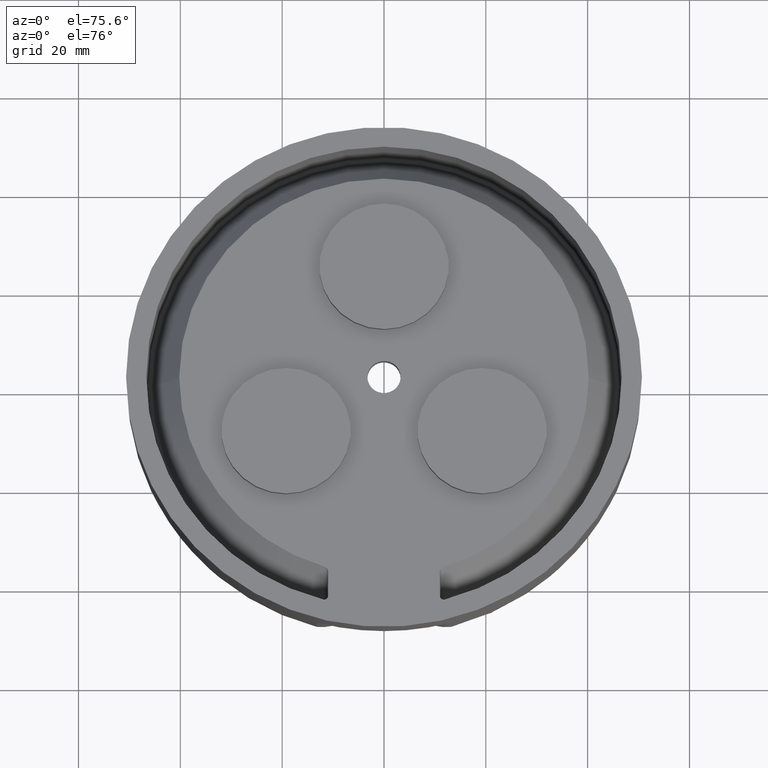
[diagram: clean part render]
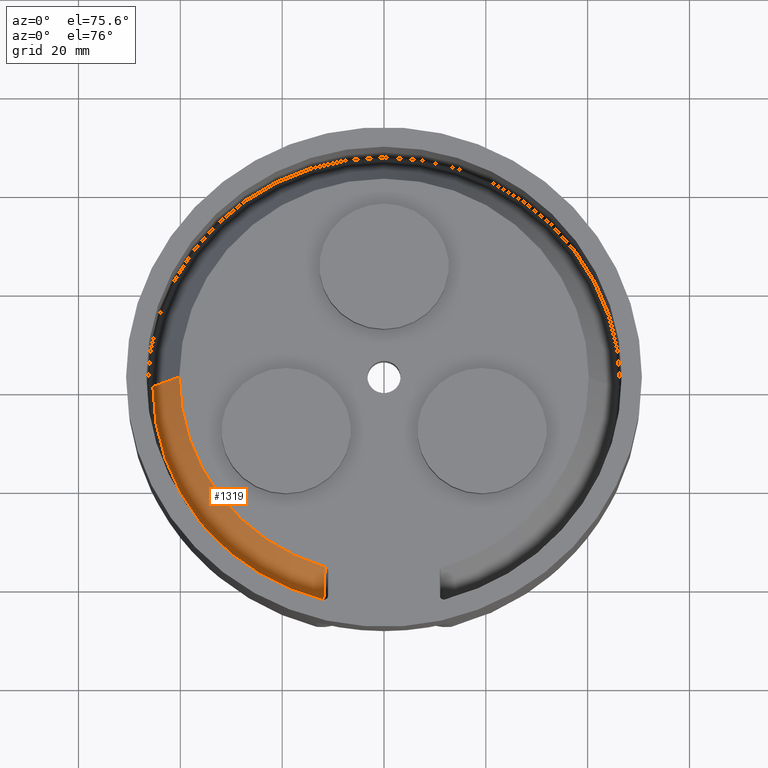
[diagram: same view with one face highlighted and labeled with its STEP entity id]
A machine part, auxiliary view. The second image highlights one B-rep face of the part: STEP entity #1319.
In plain terms, the highlighted conical surface has half-angle 34 deg.
Its self-contained STEP definition (entity closure, byte-faithful):
#20 = AXIS2_PLACEMENT_3D ( 'NONE', #2573, #2586, #2587 ) ;
#24 = AXIS2_PLACEMENT_3D ( 'NONE', #2616, #2617, #2618 ) ;
#455 = ORIENTED_EDGE ( 'NONE', *, *, #5444, .F. ) ;
#651 = VERTEX_POINT ( 'NONE', #1033 ) ;
#654 = VERTEX_POINT ( 'NONE', #1036 ) ;
#655 = VERTEX_POINT ( 'NONE', #1037 ) ;
#656 = VERTEX_POINT ( 'NONE', #1038 ) ;
#657 = VERTEX_POINT ( 'NONE', #1039 ) ;
#806 = FACE_OUTER_BOUND ( 'NONE', #5847, .T. ) ;
#808 = CONICAL_SURFACE ( 'NONE', #3451, 1.787227104442043400, 0.5934119456780733200 ) ;
#1033 = CARTESIAN_POINT ( 'NONE',  ( -1.583079598697106200, -2.253821596352594800E-015, -0.1562500000000161300 ) ) ;
#1036 = CARTESIAN_POINT ( 'NONE',  ( -1.787227104442034700, 6.454987288493129000E-015, -0.4589111238366799200 ) ) ;
#1037 = CARTESIAN_POINT ( 'NONE',  ( -0.4553458577434172400, -1.516179793311760900, -0.1562500000000073800 ) ) ;
#1038 = CARTESIAN_POINT ( 'NONE',  ( -0.4710056767952701700, -1.724045931893606300, -0.4589111238366799200 ) ) ;
#1039 = CARTESIAN_POINT ( 'NONE',  ( -0.4665456169950829600, -1.724172253810394700, -0.4573569767990897600 ) ) ;
#1319 = ADVANCED_FACE ( 'NONE', ( #806 ), #808, .T. ) ;
#2102 = B_SPLINE_CURVE_WITH_KNOTS ( 'NONE', 3,
 ( #2601, #2610, #2611, #2612, #2613, #2614, #2615 ),
 .UNSPECIFIED., .F., .F.,
 ( 4, 3, 4 ),
 ( 0.0000000000000000000, 0.006138148079901187600, 0.009299721386586948600 ),
 .UNSPECIFIED. ) ;
#2103 = B_SPLINE_CURVE_WITH_KNOTS ( 'NONE', 3,
 ( #2585, #2589, #2590, #2591, #2592, #2593, #2594, #2595, #2596, #2597 ),
 .UNSPECIFIED., .F., .F.,
 ( 4, 3, 3, 4 ),
 ( 0.0000000000000000000, 4.716724008613152900E-005, 9.752039142329750300E-005, 0.0001225809644263234500 ),
 .UNSPECIFIED. ) ;
#2573 = CARTESIAN_POINT ( 'NONE',  ( 8.741913579725642300E-015, -2.185478394931410600E-015, -0.4589111238366799200 ) ) ;
#2585 = CARTESIAN_POINT ( 'NONE',  ( -0.4665456169950829600, -1.724172253810394700, -0.4573569767990897600 ) ) ;
#2586 = DIRECTION ( 'NONE',  ( 0.0000000000000000000, -1.665334536937734100E-016, -1.000000000000000000 ) ) ;
#2587 = DIRECTION ( 'NONE',  ( -1.000000000000000000, -5.551115123125795000E-017, -3.821349825764200100E-017 ) ) ;
#2589 = CARTESIAN_POINT ( 'NONE',  ( -0.4670486387618891200, -1.724277280977231500, -0.4577020714232670200 ) ) ;
#2590 = CARTESIAN_POINT ( 'NONE',  ( -0.4675886800001922700, -1.724348095125988200, -0.4580128015297122400 ) ) ;
#2591 = CARTESIAN_POINT ( 'NONE',  ( -0.4681542372524401000, -1.724369740030105900, -0.4582634574609132900 ) ) ;
#2592 = CARTESIAN_POINT ( 'NONE',  ( -0.4687550751852978500, -1.724392735190003900, -0.4585297498494608200 ) ) ;
#2593 = CARTESIAN_POINT ( 'NONE',  ( -0.4693981018698242200, -1.724359028893184900, -0.4587317309004692000 ) ) ;
#2594 = CARTESIAN_POINT ( 'NONE',  ( -0.4700394627418933400, -1.724255275035275300, -0.4588334068754363900 ) ) ;
#2595 = CARTESIAN_POINT ( 'NONE',  ( -0.4703618572024695900, -1.724203120826139200, -0.4588845165899989600 ) ) ;
#2596 = CARTESIAN_POINT ( 'NONE',  ( -0.4706868018030658200, -1.724133047862350200, -0.4589111238366798100 ) ) ;
#2597 = CARTESIAN_POINT ( 'NONE',  ( -0.4710056767952701700, -1.724045931893606300, -0.4589111238366799200 ) ) ;
#2601 = CARTESIAN_POINT ( 'NONE',  ( -0.4553458577434172400, -1.516179793311760900, -0.1562500000000073800 ) ) ;
#2604 = CARTESIAN_POINT ( 'NONE',  ( -1.787227104442034500, -2.284689429010696000E-015, -0.4589111238366799800 ) ) ;
#2605 = DIRECTION ( 'NONE',  ( -0.5591929034707476800, -1.691039320315040500E-016, -0.8290375725550409600 ) ) ;
#2610 = CARTESIAN_POINT ( 'NONE',  ( -0.4578263251143317400, -1.562041266103403100, -0.2224268724474003600 ) ) ;
#2611 = CARTESIAN_POINT ( 'NONE',  ( -0.4602947200214185200, -1.607828130267507500, -0.2886559398310543100 ) ) ;
#2612 = CARTESIAN_POINT ( 'NONE',  ( -0.4627535608625173400, -1.653556771027452800, -0.3549254755762308900 ) ) ;
#2613 = CARTESIAN_POINT ( 'NONE',  ( -0.4640200354374364200, -1.677110211290873800, -0.3890589097986156300 ) ) ;
#2614 = CARTESIAN_POINT ( 'NONE',  ( -0.4652839628387443500, -1.700648121834696700, -0.4232031588355672500 ) ) ;
#2615 = CARTESIAN_POINT ( 'NONE',  ( -0.4665456169950829600, -1.724172253810394700, -0.4573569767990897600 ) ) ;
#2616 = CARTESIAN_POINT ( 'NONE',  ( 0.0000000000000000000, 6.556435184794231700E-015, -0.1562500000000161300 ) ) ;
#2617 = DIRECTION ( 'NONE',  ( -0.0000000000000000000, -1.665334536937734100E-016, -1.000000000000000000 ) ) ;
#2618 = DIRECTION ( 'NONE',  ( 1.000000000000000000, -8.326672684688679000E-016, 6.471203333472478400E-017 ) ) ;
#3361 = ORIENTED_EDGE ( 'NONE', *, *, #5358, .T. ) ;
#3394 = ORIENTED_EDGE ( 'NONE', *, *, #5445, .T. ) ;
#3398 = ORIENTED_EDGE ( 'NONE', *, *, #5355, .F. ) ;
#3399 = ORIENTED_EDGE ( 'NONE', *, *, #5354, .F. ) ;
#3451 = AXIS2_PLACEMENT_3D ( 'NONE', #4303, #4298, #4301 ) ;
#3550 = VECTOR ( 'NONE', #2605, 39.37007874015748900 ) ;
#3560 = LINE ( 'NONE', #2604, #3550 ) ;
#3561 = CIRCLE ( 'NONE', #20, 1.787227104442043400 ) ;
#3565 = CIRCLE ( 'NONE', #24, 1.583079598697106200 ) ;
#4298 = DIRECTION ( 'NONE',  ( 0.0000000000000000000, -1.665334536937734100E-016, -1.000000000000000000 ) ) ;
#4301 = DIRECTION ( 'NONE',  ( -1.000000000000000000, -5.551115123125795000E-017, -3.821349825764200100E-017 ) ) ;
#4303 = CARTESIAN_POINT ( 'NONE',  ( 8.741913579725642300E-015, -2.185478394931410600E-015, -0.4589111238366799200 ) ) ;
#5354 = EDGE_CURVE ( 'NONE', #656, #654, #3561, .T. ) ;
#5355 = EDGE_CURVE ( 'NONE', #657, #656, #2103, .T. ) ;
#5358 = EDGE_CURVE ( 'NONE', #651, #654, #3560, .T. ) ;
#5444 = EDGE_CURVE ( 'NONE', #655, #657, #2102, .T. ) ;
#5445 = EDGE_CURVE ( 'NONE', #655, #651, #3565, .T. ) ;
#5847 = EDGE_LOOP ( 'NONE', ( #3394, #3361, #3399, #3398, #455 ) ) ;